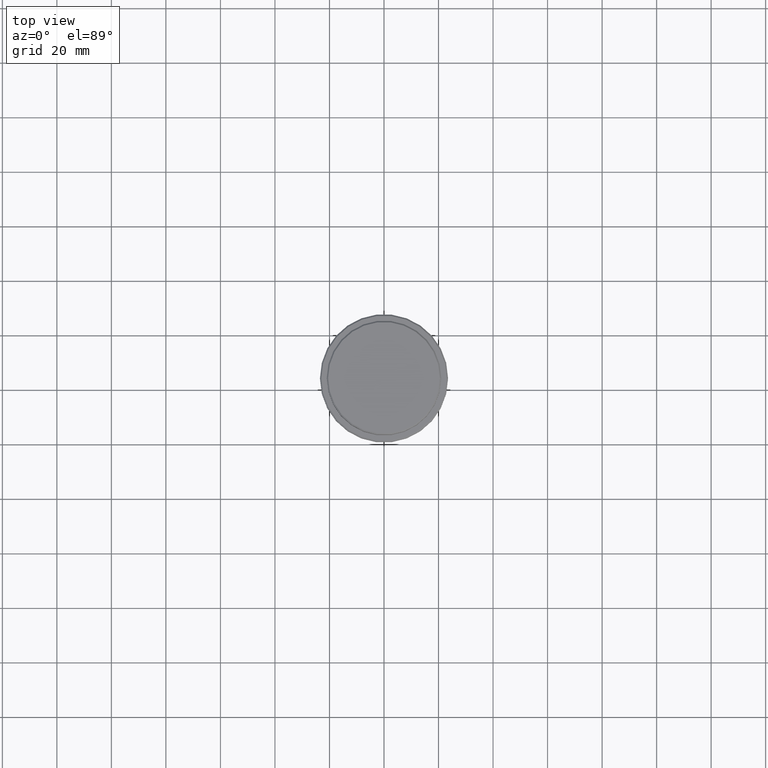
[diagram: clean part render]
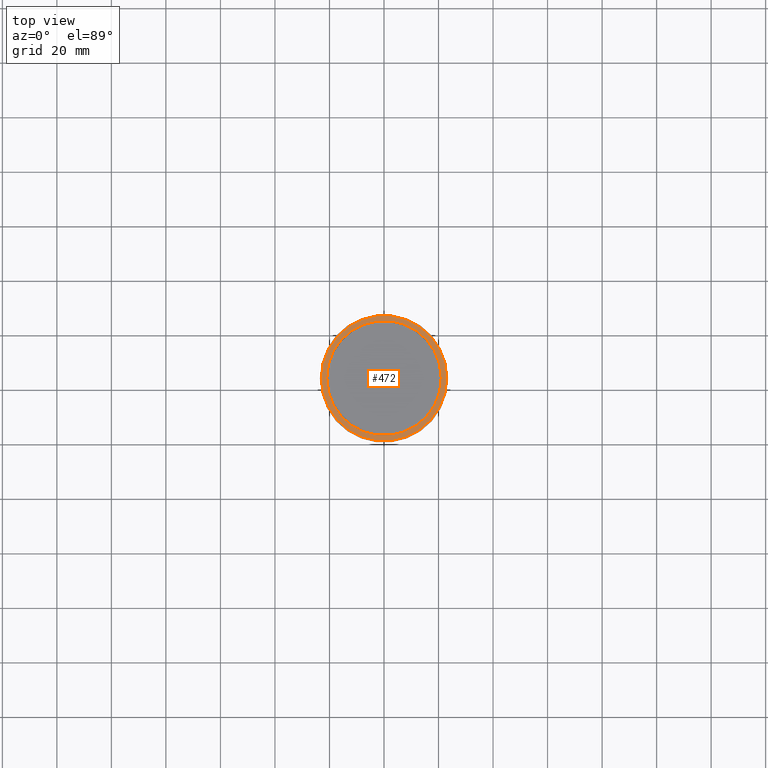
[diagram: same view with one face highlighted and labeled with its STEP entity id]
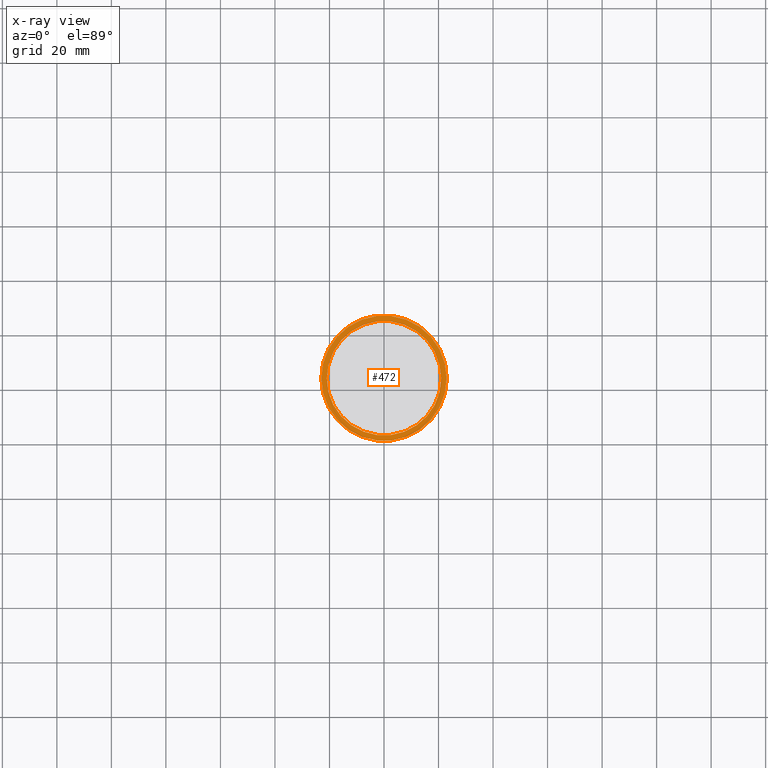
[diagram: x-ray of the same camera — body ghosted, the highlighted face saturated]
A machine part, top view. The second image highlights one B-rep face of the part: STEP entity #472.
The next image is the same camera in x-ray: the body ghosted, the highlighted face saturated — about 0% of this face is hidden behind the body in this view.
In plain terms, the highlighted planar face has unit normal (0, -0, 1).
Its self-contained STEP definition (entity closure, byte-faithful):
#9 = VERTEX_POINT ( 'NONE', #941 ) ;
#30 = DIRECTION ( 'NONE',  ( 1.000000000000000000, 0.000000000000000000, 0.000000000000000000 ) ) ;
#43 = DIRECTION ( 'NONE',  ( 0.000000000000000000, -0.000000000000000000, 1.000000000000000000 ) ) ;
#45 = AXIS2_PLACEMENT_3D ( 'NONE', #1400, #870, #1198 ) ;
#64 = CIRCLE ( 'NONE', #478, 20.99999999999999289 ) ;
#95 = DIRECTION ( 'NONE',  ( 1.000000000000000000, 0.000000000000000000, 0.000000000000000000 ) ) ;
#136 = CARTESIAN_POINT ( 'NONE',  ( 0.000000000000000000, 0.000000000000000000, -9.000000000000001776 ) ) ;
#215 = AXIS2_PLACEMENT_3D ( 'NONE', #136, #572, #30 ) ;
#296 = CIRCLE ( 'NONE', #45, 20.99999999999999289 ) ;
#325 = DIRECTION ( 'NONE',  ( -0.000000000000000000, -0.000000000000000000, 1.000000000000000000 ) ) ;
#370 = FACE_OUTER_BOUND ( 'NONE', #556, .T. ) ;
#394 = CARTESIAN_POINT ( 'NONE',  ( 0.000000000000000000, 20.49999999999999645, -9.000000000000001776 ) ) ;
#404 = ORIENTED_EDGE ( 'NONE', *, *, #1291, .T. ) ;
#453 = AXIS2_PLACEMENT_3D ( 'NONE', #1306, #325, #95 ) ;
#472 = ADVANCED_FACE ( 'NONE', ( #370, #690 ), #1376, .T. ) ;
#478 = AXIS2_PLACEMENT_3D ( 'NONE', #1213, #765, #1103 ) ;
#482 = DIRECTION ( 'NONE',  ( 1.000000000000000000, 0.000000000000000000, 0.000000000000000000 ) ) ;
#556 = EDGE_LOOP ( 'NONE', ( #404, #1215 ) ) ;
#572 = DIRECTION ( 'NONE',  ( -0.000000000000000000, -0.000000000000000000, 1.000000000000000000 ) ) ;
#662 = CARTESIAN_POINT ( 'NONE',  ( -20.99999999999999289, 2.571758278209440872E-15, -9.000000000000001776 ) ) ;
#690 = FACE_BOUND ( 'NONE', #1161, .T. ) ;
#765 = DIRECTION ( 'NONE',  ( 0.000000000000000000, 0.000000000000000000, -1.000000000000000000 ) ) ;
#820 = ORIENTED_EDGE ( 'NONE', *, *, #864, .T. ) ;
#832 = CIRCLE ( 'NONE', #453, 22.99999999999999645 ) ;
#855 = CIRCLE ( 'NONE', #215, 22.99999999999999645 ) ;
#864 = EDGE_CURVE ( 'NONE', #1273, #9, #296, .T. ) ;
#870 = DIRECTION ( 'NONE',  ( 0.000000000000000000, 0.000000000000000000, -1.000000000000000000 ) ) ;
#941 = CARTESIAN_POINT ( 'NONE',  ( 20.99999999999999289, 0.000000000000000000, -9.000000000000001776 ) ) ;
#1103 = DIRECTION ( 'NONE',  ( 1.000000000000000000, 0.000000000000000000, 0.000000000000000000 ) ) ;
#1161 = EDGE_LOOP ( 'NONE', ( #1353, #820 ) ) ;
#1172 = VERTEX_POINT ( 'NONE', #1310 ) ;
#1198 = DIRECTION ( 'NONE',  ( 1.000000000000000000, 0.000000000000000000, 0.000000000000000000 ) ) ;
#1207 = VERTEX_POINT ( 'NONE', #1399 ) ;
#1213 = CARTESIAN_POINT ( 'NONE',  ( 0.000000000000000000, 0.000000000000000000, -9.000000000000001776 ) ) ;
#1215 = ORIENTED_EDGE ( 'NONE', *, *, #1417, .T. ) ;
#1273 = VERTEX_POINT ( 'NONE', #662 ) ;
#1291 = EDGE_CURVE ( 'NONE', #1172, #1207, #832, .T. ) ;
#1299 = EDGE_CURVE ( 'NONE', #9, #1273, #64, .T. ) ;
#1306 = CARTESIAN_POINT ( 'NONE',  ( 0.000000000000000000, 0.000000000000000000, -9.000000000000001776 ) ) ;
#1310 = CARTESIAN_POINT ( 'NONE',  ( -22.99999999999999645, 0.000000000000000000, -9.000000000000001776 ) ) ;
#1353 = ORIENTED_EDGE ( 'NONE', *, *, #1299, .T. ) ;
#1371 = AXIS2_PLACEMENT_3D ( 'NONE', #394, #43, #482 ) ;
#1376 = PLANE ( 'NONE',  #1371 ) ;
#1399 = CARTESIAN_POINT ( 'NONE',  ( 22.99999999999999645, 2.847303808017596139E-15, -9.000000000000001776 ) ) ;
#1400 = CARTESIAN_POINT ( 'NONE',  ( 0.000000000000000000, 0.000000000000000000, -9.000000000000001776 ) ) ;
#1417 = EDGE_CURVE ( 'NONE', #1207, #1172, #855, .T. ) ;